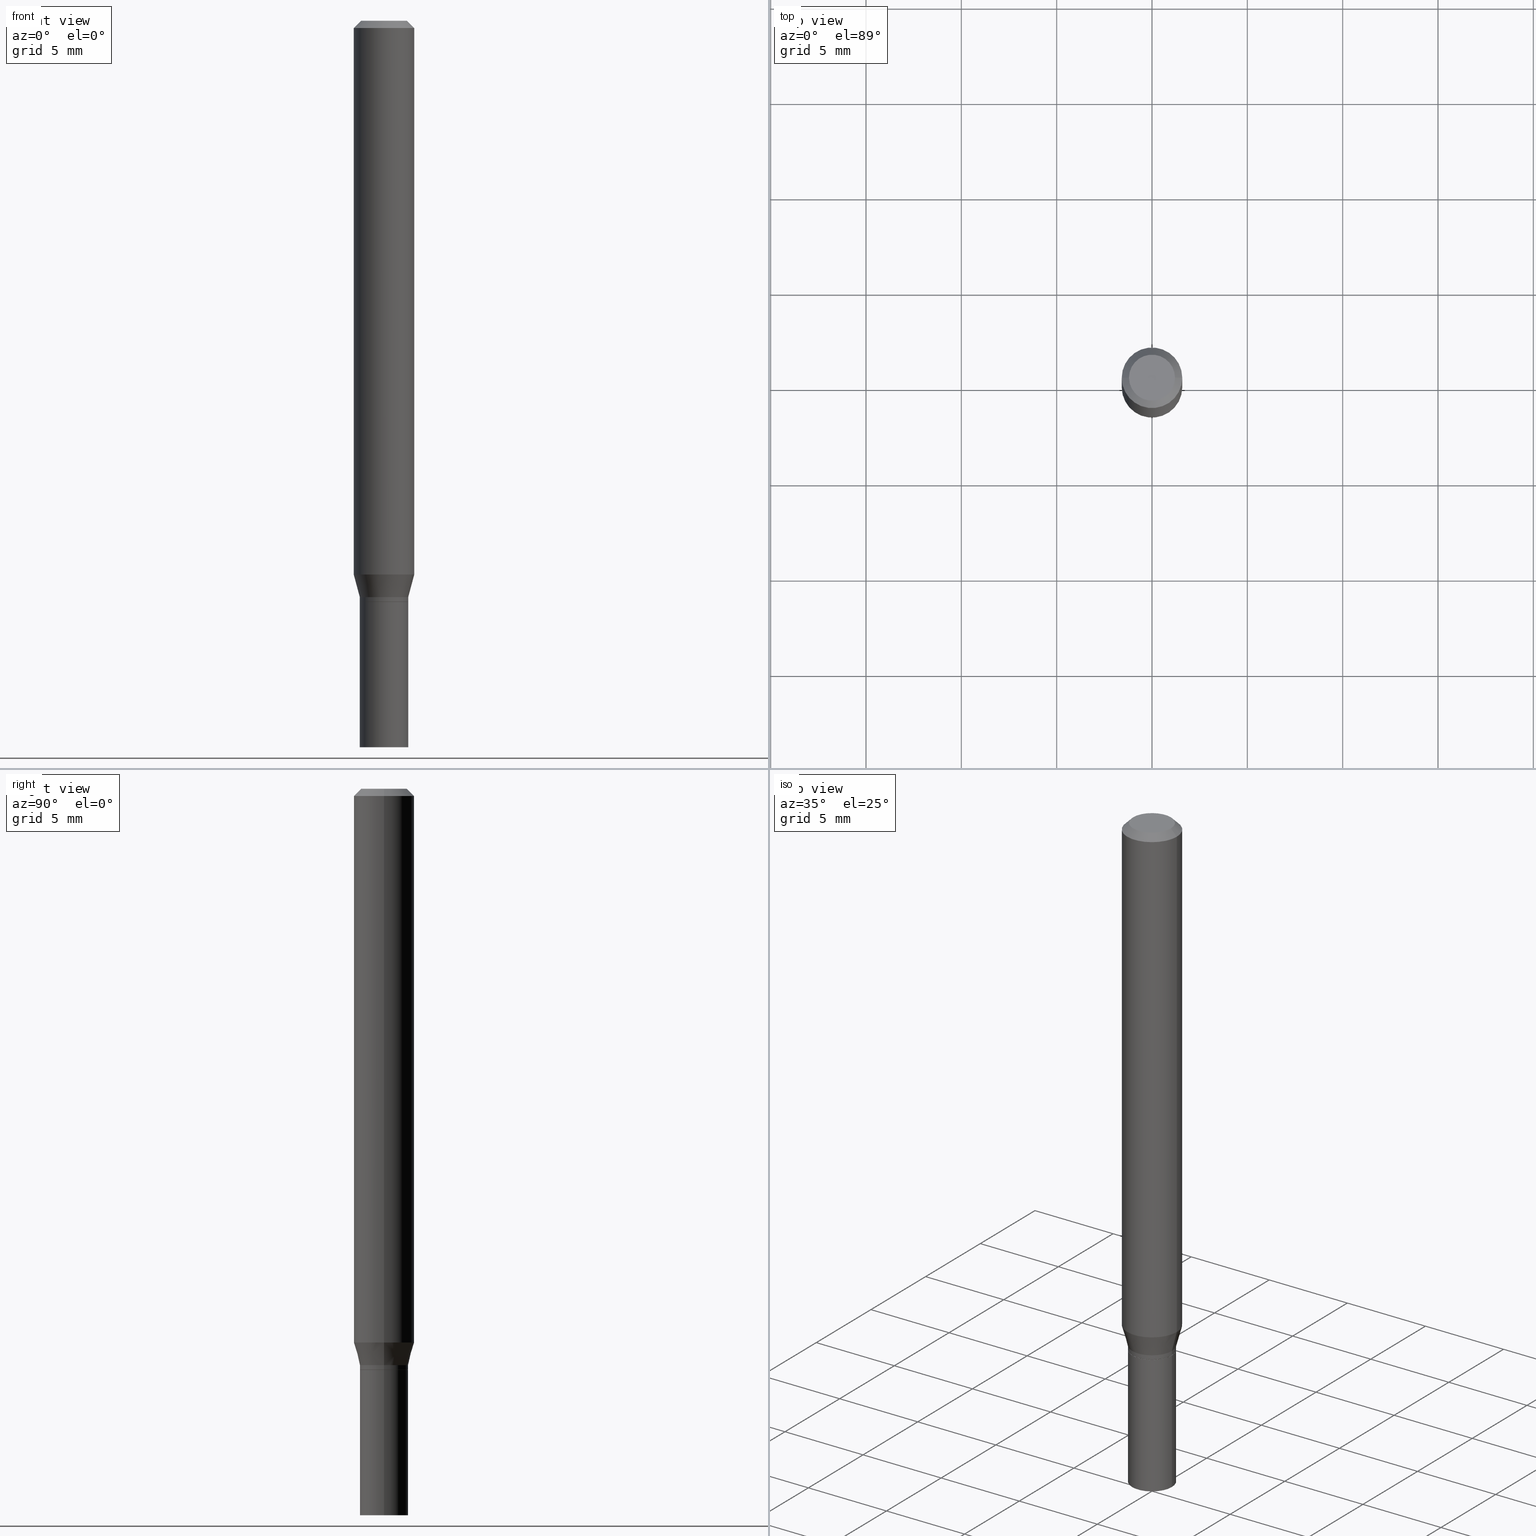
[diagram: canonical four-view strip — front | top / right | iso, engineering-drawing reading convention]
A machine part, canonical four-view strip (front | top / right | iso — engineering-drawing reading convention). The complete STEP part file that produces these views, byte-faithful:
ISO-10303-21;
HEADER;
FILE_DESCRIPTION (( 'STEP AP203' ),
    '1' );
FILE_NAME ('01222.STEP',
    '2024-03-20T00:12:47',
    ( '' ),
    ( '' ),
    'SwSTEP 2.0',
    'SolidWorks 2023',
    '' );
FILE_SCHEMA (( 'CONFIG_CONTROL_DESIGN' ));
ENDSEC;

DATA;
#1 = CONICAL_SURFACE ( 'NONE', #299, 0.06250000000000000000, 0.7853981633974456145 ) ;
#2 = LINE ( 'NONE', #396, #58 ) ;
#3 = PERSON_AND_ORGANIZATION ( #435, #434 ) ;
#4 = DIRECTION ( 'NONE',  ( -2.445468806185136597E-29, 3.491481338843145583E-15, 1.000000000000000000 ) ) ;
#5 = CARTESIAN_POINT ( 'NONE',  ( 2.934562567422164701E-29, -4.189777606611775804E-15, -1.200000000000000178 ) ) ;
#6 = DIRECTION ( 'NONE',  ( 0.2588190451025219607, 1.565188264969617432E-15, 0.9659258262890679791 ) ) ;
#7 = EDGE_CURVE ( 'NONE', #378, #350, #383, .T. ) ;
#8 = LINE ( 'NONE', #294, #319 ) ;
#9 = LOCAL_TIME ( 20, 12, 47.00000000000000000, #124 ) ;
#10 = CIRCLE ( 'NONE', #90, 0.05000000000000006523 ) ;
#11 = ADVANCED_FACE ( 'NONE', ( #399 ), #34, .T. ) ;
#12 = DIRECTION ( 'NONE',  ( 1.000000000000000000, -6.982962677686266711E-15, 4.876176775795935793E-29 ) ) ;
#13 = ADVANCED_FACE ( 'NONE', ( #143 ), #29, .T. ) ;
#14 = FACE_OUTER_BOUND ( 'NONE', #151, .T. ) ;
#15 = CARTESIAN_POINT ( 'NONE',  ( -0.05000000000000006523, -3.673742593419279671E-15, -1.190000000000000169 ) ) ;
#16 = EDGE_CURVE ( 'NONE', #311, #278, #341, .T. ) ;
#17 = DATE_TIME_ROLE ( 'classification_date' ) ;
#18 = DIRECTION ( 'NONE',  ( 1.000000000000000000, -6.982962677686265133E-15, 0.000000000000000000 ) ) ;
#19 = ORIENTED_EDGE ( 'NONE', *, *, #112, .F. ) ;
#20 = CONICAL_SURFACE ( 'NONE', #123, 0.04950000000000000233, 0.7853981633974739252 ) ;
#21 = LOCAL_TIME ( 20, 12, 47.00000000000000000, #203 ) ;
#22 = CARTESIAN_POINT ( 'NONE',  ( 0.04950000000000000233, -4.535434259157245343E-15, -1.200000000000000178 ) ) ;
#23 = EDGE_LOOP ( 'NONE', ( #461, #239 ) ) ;
#24 = VERTEX_POINT ( 'NONE', #37 ) ;
#25 = EDGE_CURVE ( 'NONE', #170, #273, #179, .T. ) ;
#26 = ORIENTED_EDGE ( 'NONE', *, *, #188, .T. ) ;
#27 = DIRECTION ( 'NONE',  ( -2.445468806185136597E-29, 3.491481338843145583E-15, 1.000000000000000000 ) ) ;
#28 = AXIS2_PLACEMENT_3D ( 'NONE', #183, #326, #12 ) ;
#29 = CYLINDRICAL_SURFACE ( 'NONE', #452, 0.05000000000000000278 ) ;
#30 = PLANE ( 'NONE',  #144 ) ;
#31 = FACE_OUTER_BOUND ( 'NONE', #241, .T. ) ;
#32 = CONICAL_SURFACE ( 'NONE', #307, 0.04950000000000000233, 0.7853981633974739252 ) ;
#33 = DIRECTION ( 'NONE',  ( -2.445468806185136597E-29, 3.491481338843145583E-15, 1.000000000000000000 ) ) ;
#34 = CONICAL_SURFACE ( 'NONE', #320, 0.05000000000000006523, 0.2617993877991506846 ) ;
#35 = DIRECTION ( 'NONE',  ( 1.000000000000000000, 0.000000000000000000, 0.000000000000000000 ) ) ;
#36 = CARTESIAN_POINT ( 'NONE',  ( 2.934562567422164701E-29, -4.189777606611775804E-15, -1.200000000000000178 ) ) ;
#37 = CARTESIAN_POINT ( 'NONE',  ( -0.04749999999999999362, 3.578768372314211985E-16, 8.618106228653636715E-17 ) ) ;
#38 = ADVANCED_FACE ( 'NONE', ( #217 ), #20, .T. ) ;
#39 = UNCERTAINTY_MEASURE_WITH_UNIT (LENGTH_MEASURE( 1.000000000000000082E-05 ), #228, 'distance_accuracy_value', 'NONE');
#40 = DIRECTION ( 'NONE',  ( -2.445468806185136877E-29, 3.491481338843145188E-15, 1.000000000000000000 ) ) ;
#41 = DIRECTION ( 'NONE',  ( -2.445468806185136597E-29, 3.491481338843145583E-15, 1.000000000000000000 ) ) ;
#42 = VECTOR ( 'NONE', #414, 39.37007874015748143 ) ;
#43 = DIRECTION ( 'NONE',  ( -2.445468806185136597E-29, 3.491481338843145583E-15, 1.000000000000000000 ) ) ;
#44 = CARTESIAN_POINT ( 'NONE',  ( -0.05000000000000000278, -4.358228439558196976E-15, -1.200000000000000178 ) ) ;
#45 = APPROVAL_ROLE ( '' ) ;
#46 = DIRECTION ( 'NONE',  ( 2.445468806185136597E-29, -3.491481338843145583E-15, -1.000000000000000000 ) ) ;
#47 = CARTESIAN_POINT ( 'NONE',  ( -0.05000000000000000278, -4.358228439558196976E-15, -1.500000000000000222 ) ) ;
#48 = AXIS2_PLACEMENT_3D ( 'NONE', #400, #4, #113 ) ;
#49 = CARTESIAN_POINT ( 'NONE',  ( 2.934562567422164701E-29, -4.189777606611775804E-15, -1.200000000000000178 ) ) ;
#50 = CALENDAR_DATE ( 2024, 19, 3 ) ;
#51 = ADVANCED_FACE ( 'NONE', ( #31 ), #462, .T. ) ;
#52 = ORIENTED_EDGE ( 'NONE', *, *, #374, .T. ) ;
#53 = DATE_AND_TIME ( #270, #9 ) ;
#54 = EDGE_LOOP ( 'NONE', ( #161, #67, #169, #237 ) ) ;
#55 = CLOSED_SHELL ( 'NONE', ( #51, #268, #215, #196, #11, #322, #346, #115, #131, #57, #38, #282 ) ) ;
#56 = CC_DESIGN_APPROVAL ( #397, ( #351 ) ) ;
#57 = ADVANCED_FACE ( 'NONE', ( #114 ), #30, .F. ) ;
#58 = VECTOR ( 'NONE', #404, 39.37007874015748143 ) ;
#59 = ORIENTED_EDGE ( 'NONE', *, *, #453, .F. ) ;
#60 = APPROVAL_ROLE ( '' ) ;
#61 = ORIENTED_EDGE ( 'NONE', *, *, #293, .T. ) ;
#62 = CC_DESIGN_DATE_AND_TIME_ASSIGNMENT ( #53, #465, ( #272 ) ) ;
#63 = EDGE_LOOP ( 'NONE', ( #323, #430, #450, #348 ) ) ;
#64 = ORIENTED_EDGE ( 'NONE', *, *, #185, .T. ) ;
#65 = DIRECTION ( 'NONE',  ( 1.000000000000000000, -6.982962677686266711E-15, 4.876176775795935232E-29 ) ) ;
#66 = PERSON_AND_ORGANIZATION ( #435, #434 ) ;
#67 = ORIENTED_EDGE ( 'NONE', *, *, #275, .F. ) ;
#68 = LOCAL_TIME ( 20, 12, 47.00000000000000000, #230 ) ;
#69 = CIRCLE ( 'NONE', #398, 0.05000000000000000278 ) ;
#70 = DIRECTION ( 'NONE',  ( 1.000000000000000000, -6.982962677686266711E-15, 0.000000000000000000 ) ) ;
#71 = EDGE_CURVE ( 'NONE', #311, #105, #2, .T. ) ;
#72 = CARTESIAN_POINT ( 'NONE',  ( 0.05000000000000000278, -4.538925740496089139E-15, -1.200000000000000178 ) ) ;
#73 = CARTESIAN_POINT ( 'NONE',  ( 0.05000000000000006523, -3.491481338843137793E-16, 2.438088387897970699E-30 ) ) ;
#74 = DIRECTION ( 'NONE',  ( -2.445468806185136597E-29, 3.491481338843145583E-15, 1.000000000000000000 ) ) ;
#75 = DIRECTION ( 'NONE',  ( 1.000000000000000000, -6.982962677686266711E-15, 4.876176775795935793E-29 ) ) ;
#76 = AXIS2_PLACEMENT_3D ( 'NONE', #449, #337, #271 ) ;
#77 = EDGE_CURVE ( 'NONE', #390, #273, #10, .T. ) ;
#78 = CARTESIAN_POINT ( 'NONE',  ( 0.000000000000000000, 0.000000000000000000, 0.000000000000000000 ) ) ;
#79 = DIRECTION ( 'NONE',  ( 1.000000000000000000, -6.982962677686274599E-15, 0.000000000000000000 ) ) ;
#80 = DIRECTION ( 'NONE',  ( 0.7071067811865656694, -2.468850131082446387E-15, 0.7071067811865294761 ) ) ;
#81 = CARTESIAN_POINT ( 'NONE',  ( 0.000000000000000000, 0.000000000000000000, 0.000000000000000000 ) ) ;
#82 = PRODUCT ( '01222', '01222', '', ( #118 ) ) ;
#83 = LOCAL_TIME ( 20, 12, 47.00000000000000000, #189 ) ;
#84 = VECTOR ( 'NONE', #353, 39.37007874015748854 ) ;
#85 = DIRECTION ( 'NONE',  ( 1.000000000000000000, -6.982962677686275388E-15, 0.000000000000000000 ) ) ;
#86 = CARTESIAN_POINT ( 'NONE',  ( 0.06250000000000000000, -4.811533449433679005E-16, -0.01499999999999999944 ) ) ;
#87 = DIRECTION ( 'NONE',  ( -1.000000000000000000, 6.982962677686266711E-15, 0.000000000000000000 ) ) ;
#88 = EDGE_CURVE ( 'NONE', #418, #24, #368, .T. ) ;
#89 = APPROVAL_PERSON_ORGANIZATION ( #441, #438, #45 ) ;
#90 = AXIS2_PLACEMENT_3D ( 'NONE', #214, #321, #147 ) ;
#91 = EDGE_CURVE ( 'NONE', #242, #313, #69, .T. ) ;
#92 = EDGE_LOOP ( 'NONE', ( #100, #61, #247, #167 ) ) ;
#93 = PERSON_AND_ORGANIZATION_ROLE ( 'classification_officer' ) ;
#94 = VERTEX_POINT ( 'NONE', #250 ) ;
#95 = ORIENTED_EDGE ( 'NONE', *, *, #410, .F. ) ;
#96 = ADVANCED_FACE ( 'NONE', ( #401 ), #180, .T. ) ;
#97 = PLANE ( 'NONE',  #292 ) ;
#98 = ORIENTED_EDGE ( 'NONE', *, *, #379, .F. ) ;
#99 = AXIS2_PLACEMENT_3D ( 'NONE', #234, #194, #18 ) ;
#100 = ORIENTED_EDGE ( 'NONE', *, *, #259, .T. ) ;
#101 = DIRECTION ( 'NONE',  ( -2.445468806185136597E-29, 3.491481338843145583E-15, 1.000000000000000000 ) ) ;
#102 = ORIENTED_EDGE ( 'NONE', *, *, #354, .T. ) ;
#103 = DIRECTION ( 'NONE',  ( 1.000000000000000000, -6.982962677686274599E-15, 0.000000000000000000 ) ) ;
#104 = ORIENTED_EDGE ( 'NONE', *, *, #106, .T. ) ;
#105 = VERTEX_POINT ( 'NONE', #432 ) ;
#106 = EDGE_CURVE ( 'NONE', #273, #140, #222, .T. ) ;
#107 = ORIENTED_EDGE ( 'NONE', *, *, #209, .F. ) ;
#108 = VECTOR ( 'NONE', #126, 39.37007874015748143 ) ;
#109 = LINE ( 'NONE', #280, #429 ) ;
#110 = DIRECTION ( 'NONE',  ( 1.000000000000000000, -6.982962677686264344E-15, 0.000000000000000000 ) ) ;
#111 = DIRECTION ( 'NONE',  ( 1.000000000000000000, -6.982962677686274599E-15, 0.000000000000000000 ) ) ;
#112 = EDGE_CURVE ( 'NONE', #24, #378, #117, .T. ) ;
#113 = DIRECTION ( 'NONE',  ( 1.000000000000000000, -6.982962677686275388E-15, 0.000000000000000000 ) ) ;
#114 = FACE_OUTER_BOUND ( 'NONE', #136, .T. ) ;
#115 = ADVANCED_FACE ( 'NONE', ( #425 ), #436, .T. ) ;
#116 = LINE ( 'NONE', #408, #261 ) ;
#117 = LINE ( 'NONE', #208, #84 ) ;
#118 = MECHANICAL_CONTEXT ( 'NONE', #407, 'mechanical' ) ;
#119 =( NAMED_UNIT ( * ) PLANE_ANGLE_UNIT ( ) SI_UNIT ( $, .RADIAN. ) );
#120 = CYLINDRICAL_SURFACE ( 'NONE', #28, 0.06250000000000000000 ) ;
#121 = AXIS2_PLACEMENT_3D ( 'NONE', #181, #444, #224 ) ;
#122 = SECURITY_CLASSIFICATION ( '', '', #375 ) ;
#123 = AXIS2_PLACEMENT_3D ( 'NONE', #244, #314, #357 ) ;
#124 = COORDINATED_UNIVERSAL_TIME_OFFSET ( 5, 0, .BEHIND. ) ;
#125 = DIRECTION ( 'NONE',  ( -1.000000000000000000, 6.982962677686265922E-15, -4.876176775795935793E-29 ) ) ;
#126 = DIRECTION ( 'NONE',  ( -2.445468806185136877E-29, 3.491481338843145188E-15, 1.000000000000000000 ) ) ;
#127 = PERSON_AND_ORGANIZATION_ROLE ( 'design_owner' ) ;
#128 = CC_DESIGN_APPROVAL ( #336, ( #122 ) ) ;
#129 = ORIENTED_EDGE ( 'NONE', *, *, #225, .F. ) ;
#130 = PERSON_AND_ORGANIZATION ( #435, #434 ) ;
#131 = ADVANCED_FACE ( 'NONE', ( #256 ), #447, .F. ) ;
#132 = EDGE_LOOP ( 'NONE', ( #98, #426, #133, #304 ) ) ;
#133 = ORIENTED_EDGE ( 'NONE', *, *, #25, .T. ) ;
#134 = CC_DESIGN_DATE_AND_TIME_ASSIGNMENT ( #193, #17, ( #122 ) ) ;
#135 = DIRECTION ( 'NONE',  ( 1.000000000000000000, -6.982962677686264344E-15, 0.000000000000000000 ) ) ;
#136 = EDGE_LOOP ( 'NONE', ( #149, #454 ) ) ;
#137 = ORIENTED_EDGE ( 'NONE', *, *, #77, .T. ) ;
#138 = ORIENTED_EDGE ( 'NONE', *, *, #204, .T. ) ;
#139 = CARTESIAN_POINT ( 'NONE',  ( 3.668203209277705088E-31, -5.237222008264718399E-17, -0.01499999999999999944 ) ) ;
#140 = VERTEX_POINT ( 'NONE', #156 ) ;
#141 = PRODUCT_RELATED_PRODUCT_CATEGORY ( 'detail', '', ( #82 ) ) ;
#142 = DIRECTION ( 'NONE',  ( 1.000000000000000000, -6.982962677686265922E-15, 4.876176775795935793E-29 ) ) ;
#143 = FACE_OUTER_BOUND ( 'NONE', #197, .T. ) ;
#144 = AXIS2_PLACEMENT_3D ( 'NONE', #355, #433, #318 ) ;
#145 = LOCAL_TIME ( 20, 12, 47.00000000000000000, #263 ) ;
#146 = AXIS2_PLACEMENT_3D ( 'NONE', #257, #262, #125 ) ;
#147 = DIRECTION ( 'NONE',  ( 1.000000000000000000, -6.982962677686265133E-15, 0.000000000000000000 ) ) ;
#148 = DESIGN_CONTEXT ( 'detailed design', #448, 'design' ) ;
#149 = ORIENTED_EDGE ( 'NONE', *, *, #188, .F. ) ;
#150 = DIRECTION ( 'NONE',  ( 1.000000000000000000, -6.982962677686274599E-15, 0.000000000000000000 ) ) ;
#151 = EDGE_LOOP ( 'NONE', ( #26, #393, #107, #335 ) ) ;
#152 = DIRECTION ( 'NONE',  ( -2.445468806185136597E-29, 3.491481338843145583E-15, 1.000000000000000000 ) ) ;
#153 = DIRECTION ( 'NONE',  ( -2.445468806185136597E-29, 3.491481338843145583E-15, 1.000000000000000000 ) ) ;
#154 = AXIS2_PLACEMENT_3D ( 'NONE', #139, #287, #70 ) ;
#155 = CARTESIAN_POINT ( 'NONE',  ( 0.05000000000000000278, -5.586370142149032301E-15, -1.500000000000000222 ) ) ;
#156 = CARTESIAN_POINT ( 'NONE',  ( 0.06250000000000000000, -4.428418138700722248E-15, -1.143349364905389631 ) ) ;
#157 = CARTESIAN_POINT ( 'NONE',  ( 2.934562567422164701E-29, -4.189777606611775804E-15, -1.200000000000000178 ) ) ;
#158 = LINE ( 'NONE', #300, #42 ) ;
#159 = AXIS2_PLACEMENT_3D ( 'NONE', #36, #365, #150 ) ;
#160 = PERSON_AND_ORGANIZATION_ROLE ( 'design_supplier' ) ;
#161 = ORIENTED_EDGE ( 'NONE', *, *, #442, .F. ) ;
#162 = APPROVAL_ROLE ( '' ) ;
#163 = APPROVAL_PERSON_ORGANIZATION ( #3, #397, #60 ) ;
#164 = EDGE_LOOP ( 'NONE', ( #59, #137, #104, #129 ) ) ;
#165 = CYLINDRICAL_SURFACE ( 'NONE', #221, 0.05000000000000006523 ) ;
#166 = ORIENTED_EDGE ( 'NONE', *, *, #379, .T. ) ;
#167 = ORIENTED_EDGE ( 'NONE', *, *, #370, .F. ) ;
#168 = CALENDAR_DATE ( 2024, 19, 3 ) ;
#169 = ORIENTED_EDGE ( 'NONE', *, *, #112, .T. ) ;
#170 = VERTEX_POINT ( 'NONE', #409 ) ;
#171 =( GEOMETRIC_REPRESENTATION_CONTEXT ( 3 ) GLOBAL_UNCERTAINTY_ASSIGNED_CONTEXT ( ( #39 ) ) GLOBAL_UNIT_ASSIGNED_CONTEXT ( ( #228, #119, #291 ) ) REPRESENTATION_CONTEXT ( 'NONE', 'WORKASPACE' ) );
#172 = DIRECTION ( 'NONE',  ( -2.445468806185136597E-29, 3.491481338843145583E-15, 1.000000000000000000 ) ) ;
#173 = EDGE_CURVE ( 'NONE', #350, #378, #466, .T. ) ;
#174 = ORIENTED_EDGE ( 'NONE', *, *, #293, .F. ) ;
#175 = DIRECTION ( 'NONE',  ( 1.000000000000000000, -6.982962677686267499E-15, 4.884662768193073002E-29 ) ) ;
#176 = DIRECTION ( 'NONE',  ( -2.445468806185136597E-29, 3.491481338843145583E-15, 1.000000000000000000 ) ) ;
#177 = CARTESIAN_POINT ( 'NONE',  ( 0.000000000000000000, 0.000000000000000000, 0.000000000000000000 ) ) ;
#178 = AXIS2_PLACEMENT_3D ( 'NONE', #260, #43, #85 ) ;
#179 = LINE ( 'NONE', #73, #213 ) ;
#180 = CYLINDRICAL_SURFACE ( 'NONE', #327, 0.05000000000000000278 ) ;
#181 = CARTESIAN_POINT ( 'NONE',  ( 3.668203209277705088E-31, -5.237222008264718399E-17, -0.01499999999999999944 ) ) ;
#182 = LINE ( 'NONE', #376, #108 ) ;
#183 = CARTESIAN_POINT ( 'NONE',  ( 0.000000000000000000, 0.000000000000000000, 0.000000000000000000 ) ) ;
#184 = CIRCLE ( 'NONE', #233, 0.04950000000000000233 ) ;
#185 = EDGE_CURVE ( 'NONE', #278, #170, #8, .T. ) ;
#186 = LINE ( 'NONE', #330, #295 ) ;
#187 = LINE ( 'NONE', #86, #201 ) ;
#188 = EDGE_CURVE ( 'NONE', #278, #311, #184, .T. ) ;
#189 = COORDINATED_UNIVERSAL_TIME_OFFSET ( 5, 0, .BEHIND. ) ;
#190 = DIRECTION ( 'NONE',  ( -2.445468806185136597E-29, 3.491481338843145583E-15, 1.000000000000000000 ) ) ;
#191 = CIRCLE ( 'NONE', #286, 0.06250000000000000000 ) ;
#192 = ORIENTED_EDGE ( 'NONE', *, *, #16, .T. ) ;
#193 = DATE_AND_TIME ( #236, #68 ) ;
#194 = DIRECTION ( 'NONE',  ( -2.445468806185136597E-29, 3.491481338843145583E-15, 1.000000000000000000 ) ) ;
#195 = EDGE_LOOP ( 'NONE', ( #240, #422, #52, #381 ) ) ;
#196 = ADVANCED_FACE ( 'NONE', ( #413 ), #120, .T. ) ;
#197 = EDGE_LOOP ( 'NONE', ( #174, #388, #274, #235 ) ) ;
#198 = AXIS2_PLACEMENT_3D ( 'NONE', #324, #152, #298 ) ;
#199 = MANIFOLD_SOLID_BREP ( 'Body-Move/Copy2[1]', #343 ) ;
#200 = DIRECTION ( 'NONE',  ( 0.7071067811865454633, -7.319954787623246579E-15, -0.7071067811865493491 ) ) ;
#201 = VECTOR ( 'NONE', #200, 39.37007874015748854 ) ;
#202 = ORIENTED_EDGE ( 'NONE', *, *, #71, .F. ) ;
#203 = COORDINATED_UNIVERSAL_TIME_OFFSET ( 5, 0, .BEHIND. ) ;
#204 = EDGE_CURVE ( 'NONE', #94, #378, #186, .T. ) ;
#205 = ORIENTED_EDGE ( 'NONE', *, *, #374, .F. ) ;
#206 = APPROVAL_STATUS ( 'not_yet_approved' ) ;
#207 = VERTEX_POINT ( 'NONE', #155 ) ;
#208 = CARTESIAN_POINT ( 'NONE',  ( -0.06250000000000000000, 3.840629472727444916E-16, -0.01499999999999999944 ) ) ;
#209 = EDGE_CURVE ( 'NONE', #170, #105, #246, .T. ) ;
#210 = AXIS2_PLACEMENT_3D ( 'NONE', #463, #395, #142 ) ;
#211 = MANIFOLD_SOLID_BREP ( 'Body-Move/Copy2[2]', #55 ) ;
#212 = ORIENTED_EDGE ( 'NONE', *, *, #442, .T. ) ;
#213 = VECTOR ( 'NONE', #281, 39.37007874015748143 ) ;
#214 = CARTESIAN_POINT ( 'NONE',  ( 2.910107879360313156E-29, -4.154862793223344154E-15, -1.190000000000000169 ) ) ;
#215 = ADVANCED_FACE ( 'NONE', ( #297 ), #1, .T. ) ;
#216 = FACE_OUTER_BOUND ( 'NONE', #164, .T. ) ;
#217 = FACE_OUTER_BOUND ( 'NONE', #386, .T. ) ;
#218 = DIRECTION ( 'NONE',  ( 1.000000000000000000, -6.982962677686270655E-15, 0.000000000000000000 ) ) ;
#219 = DIRECTION ( 'NONE',  ( -2.445468806185136597E-29, 3.491481338843145583E-15, 1.000000000000000000 ) ) ;
#220 = CARTESIAN_POINT ( 'NONE',  ( 0.000000000000000000, 0.000000000000000000, 0.000000000000000000 ) ) ;
#221 = AXIS2_PLACEMENT_3D ( 'NONE', #308, #249, #223 ) ;
#222 = LINE ( 'NONE', #362, #227 ) ;
#223 = DIRECTION ( 'NONE',  ( 1.000000000000000000, -6.982962677686266711E-15, 4.876176775795935232E-29 ) ) ;
#224 = DIRECTION ( 'NONE',  ( -1.000000000000000000, 6.982962677686266711E-15, 0.000000000000000000 ) ) ;
#225 = EDGE_CURVE ( 'NONE', #94, #140, #191, .T. ) ;
#226 = AXIS2_PLACEMENT_3D ( 'NONE', #356, #176, #437 ) ;
#227 = VECTOR ( 'NONE', #6, 39.37007874015748143 ) ;
#228 =( CONVERSION_BASED_UNIT ( 'INCH', #439 ) LENGTH_UNIT ( ) NAMED_UNIT ( #331 ) );
#229 = CARTESIAN_POINT ( 'NONE',  ( 3.668203209277704895E-29, -5.237222008264718177E-15, -1.500000000000000222 ) ) ;
#230 = COORDINATED_UNIVERSAL_TIME_OFFSET ( 5, 0, .BEHIND. ) ;
#231 = CARTESIAN_POINT ( 'NONE',  ( -0.06250000000000000000, -1.578088385863926213E-15, -0.01499999999999999944 ) ) ;
#232 = AXIS2_PLACEMENT_3D ( 'NONE', #220, #406, #35 ) ;
#233 = AXIS2_PLACEMENT_3D ( 'NONE', #157, #41, #364 ) ;
#234 = CARTESIAN_POINT ( 'NONE',  ( 2.910107879360313156E-29, -4.154862793223344154E-15, -1.190000000000000169 ) ) ;
#235 = ORIENTED_EDGE ( 'NONE', *, *, #91, .F. ) ;
#236 = CALENDAR_DATE ( 2024, 19, 3 ) ;
#237 = ORIENTED_EDGE ( 'NONE', *, *, #7, .T. ) ;
#238 = APPROVAL_PERSON_ORGANIZATION ( #266, #336, #162 ) ;
#239 = ORIENTED_EDGE ( 'NONE', *, *, #88, .T. ) ;
#240 = ORIENTED_EDGE ( 'NONE', *, *, #204, .F. ) ;
#241 = EDGE_LOOP ( 'NONE', ( #279, #166, #95, #382 ) ) ;
#242 = VERTEX_POINT ( 'NONE', #44 ) ;
#243 = DATE_AND_TIME ( #168, #21 ) ;
#244 = CARTESIAN_POINT ( 'NONE',  ( 2.934562567422164701E-29, -4.189777606611775804E-15, -1.200000000000000178 ) ) ;
#245 = CONICAL_SURFACE ( 'NONE', #226, 0.05000000000000006523, 0.2617993877991506846 ) ;
#246 = CIRCLE ( 'NONE', #178, 0.05000000000000006523 ) ;
#247 = ORIENTED_EDGE ( 'NONE', *, *, #354, .F. ) ;
#248 = CC_DESIGN_PERSON_AND_ORGANIZATION_ASSIGNMENT ( #303, #93, ( #122 ) ) ;
#249 = DIRECTION ( 'NONE',  ( -2.445468806185136597E-29, 3.491481338843145583E-15, 1.000000000000000000 ) ) ;
#250 = CARTESIAN_POINT ( 'NONE',  ( -0.06250000000000000000, -3.547893761495267568E-15, -1.143349364905389631 ) ) ;
#251 = FACE_OUTER_BOUND ( 'NONE', #195, .T. ) ;
#252 = CARTESIAN_POINT ( 'NONE',  ( 0.000000000000000000, 0.000000000000000000, 0.000000000000000000 ) ) ;
#253 =( LENGTH_UNIT ( ) NAMED_UNIT ( * ) SI_UNIT ( $, .METRE. ) );
#254 = CIRCLE ( 'NONE', #48, 0.05000000000000006523 ) ;
#255 = DIRECTION ( 'NONE',  ( -2.445468806185136597E-29, 3.491481338843145583E-15, 1.000000000000000000 ) ) ;
#256 = FACE_OUTER_BOUND ( 'NONE', #23, .T. ) ;
#257 = CARTESIAN_POINT ( 'NONE',  ( 3.316907271900976096E-16, 0.04749999999999999362, -1.227548324517800049E-16 ) ) ;
#258 = APPLICATION_PROTOCOL_DEFINITION ( 'international standard', 'config_control_design', 1994, #407 ) ;
#259 = EDGE_CURVE ( 'NONE', #207, #391, #424, .T. ) ;
#260 = CARTESIAN_POINT ( 'NONE',  ( 2.933339833019071899E-29, -4.188031865942353511E-15, -1.199500000000000233 ) ) ;
#261 = VECTOR ( 'NONE', #40, 39.37007874015748143 ) ;
#262 = DIRECTION ( 'NONE',  ( 2.438088387897960049E-29, -3.491481338843145188E-15, -1.000000000000000000 ) ) ;
#263 = COORDINATED_UNIVERSAL_TIME_OFFSET ( 5, 0, .BEHIND. ) ;
#264 = CARTESIAN_POINT ( 'NONE',  ( -0.05000000000000006523, -3.799591425343292957E-15, -1.190000000000000169 ) ) ;
#265 = DIRECTION ( 'NONE',  ( -2.445468806185136597E-29, 3.491481338843145583E-15, 1.000000000000000000 ) ) ;
#266 = PERSON_AND_ORGANIZATION ( #435, #434 ) ;
#267 = AXIS2_PLACEMENT_3D ( 'NONE', #412, #27, #218 ) ;
#268 = ADVANCED_FACE ( 'NONE', ( #14 ), #32, .T. ) ;
#269 = EDGE_LOOP ( 'NONE', ( #310, #212, #456, #19 ) ) ;
#270 = CALENDAR_DATE ( 2024, 19, 3 ) ;
#271 = DIRECTION ( 'NONE',  ( 1.000000000000000000, -6.982962677686267499E-15, 4.884662768193073002E-29 ) ) ;
#272 = PRODUCT_DEFINITION ( 'UNKNOWN', '', #351, #148 ) ;
#273 = VERTEX_POINT ( 'NONE', #334 ) ;
#274 = ORIENTED_EDGE ( 'NONE', *, *, #370, .T. ) ;
#275 = EDGE_CURVE ( 'NONE', #24, #418, #277, .T. ) ;
#276 = EDGE_LOOP ( 'NONE', ( #102, #339 ) ) ;
#277 = CIRCLE ( 'NONE', #76, 0.04749999999999999362 ) ;
#278 = VERTEX_POINT ( 'NONE', #22 ) ;
#279 = ORIENTED_EDGE ( 'NONE', *, *, #209, .T. ) ;
#280 = CARTESIAN_POINT ( 'NONE',  ( -0.05000000000000000278, 3.552713678800501127E-16, -2.459467545127453311E-30 ) ) ;
#281 = DIRECTION ( 'NONE',  ( -2.445468806185136877E-29, 3.491481338843145188E-15, 1.000000000000000000 ) ) ;
#282 = ADVANCED_FACE ( 'NONE', ( #423 ), #165, .T. ) ;
#283 = CARTESIAN_POINT ( 'NONE',  ( -0.04950000000000000233, -3.835409725236414304E-15, -1.200000000000000178 ) ) ;
#284 = DIRECTION ( 'NONE',  ( 1.000000000000000000, -6.982962677686267499E-15, 4.876176775795936353E-29 ) ) ;
#285 = AXIS2_PLACEMENT_3D ( 'NONE', #177, #219, #65 ) ;
#286 = AXIS2_PLACEMENT_3D ( 'NONE', #328, #265, #371 ) ;
#287 = DIRECTION ( 'NONE',  ( -2.445468806185136597E-29, 3.491481338843145583E-15, 1.000000000000000000 ) ) ;
#288 = CARTESIAN_POINT ( 'NONE',  ( -2.107530995056288845E-45, 3.008995707351289501E-31, 8.618106228653878303E-17 ) ) ;
#289 = EDGE_CURVE ( 'NONE', #140, #94, #458, .T. ) ;
#290 = DIRECTION ( 'NONE',  ( -2.445468806185136597E-29, 3.491481338843145583E-15, 1.000000000000000000 ) ) ;
#291 =( NAMED_UNIT ( * ) SI_UNIT ( $, .STERADIAN. ) SOLID_ANGLE_UNIT ( ) );
#292 = AXIS2_PLACEMENT_3D ( 'NONE', #385, #296, #363 ) ;
#293 = EDGE_CURVE ( 'NONE', #391, #242, #109, .T. ) ;
#294 = CARTESIAN_POINT ( 'NONE',  ( 0.04950000000000000233, -4.535434259157245343E-15, -1.200000000000000178 ) ) ;
#295 = VECTOR ( 'NONE', #367, 39.37007874015748143 ) ;
#296 = DIRECTION ( 'NONE',  ( 2.438088387897960049E-29, -3.491481338843145188E-15, -1.000000000000000000 ) ) ;
#297 = FACE_OUTER_BOUND ( 'NONE', #269, .T. ) ;
#298 = DIRECTION ( 'NONE',  ( 1.000000000000000000, -6.982962677686266711E-15, 0.000000000000000000 ) ) ;
#299 = AXIS2_PLACEMENT_3D ( 'NONE', #411, #46, #87 ) ;
#300 = CARTESIAN_POINT ( 'NONE',  ( -0.05000000000000006523, 3.552713678800505564E-16, -2.459467545127455764E-30 ) ) ;
#301 = CALENDAR_DATE ( 2024, 19, 3 ) ;
#302 = APPROVAL_DATE_TIME ( #445, #438 ) ;
#303 = PERSON_AND_ORGANIZATION ( #435, #434 ) ;
#304 = ORIENTED_EDGE ( 'NONE', *, *, #77, .F. ) ;
#305 = APPROVAL_DATE_TIME ( #380, #336 ) ;
#306 = EDGE_CURVE ( 'NONE', #391, #207, #440, .T. ) ;
#307 = AXIS2_PLACEMENT_3D ( 'NONE', #49, #455, #135 ) ;
#308 = CARTESIAN_POINT ( 'NONE',  ( 0.000000000000000000, 0.000000000000000000, 0.000000000000000000 ) ) ;
#309 = ADVANCED_FACE ( 'NONE', ( #352 ), #316, .F. ) ;
#310 = ORIENTED_EDGE ( 'NONE', *, *, #88, .F. ) ;
#311 = VERTEX_POINT ( 'NONE', #283 ) ;
#312 = AXIS2_PLACEMENT_3D ( 'NONE', #81, #153, #75 ) ;
#313 = VERTEX_POINT ( 'NONE', #72 ) ;
#314 = DIRECTION ( 'NONE',  ( -2.445468806185136597E-29, 3.491481338843145583E-15, 1.000000000000000000 ) ) ;
#315 = ORIENTED_EDGE ( 'NONE', *, *, #259, .F. ) ;
#316 = PLANE ( 'NONE',  #210 ) ;
#317 = DIRECTION ( 'NONE',  ( -2.445468806185136597E-29, 3.491481338843145583E-15, 1.000000000000000000 ) ) ;
#318 = DIRECTION ( 'NONE',  ( 1.000000000000000000, -6.982962677686265922E-15, 4.876176775795935793E-29 ) ) ;
#319 = VECTOR ( 'NONE', #80, 39.37007874015748143 ) ;
#320 = AXIS2_PLACEMENT_3D ( 'NONE', #428, #172, #464 ) ;
#321 = DIRECTION ( 'NONE',  ( -2.445468806185136597E-29, 3.491481338843145583E-15, 1.000000000000000000 ) ) ;
#322 = ADVANCED_FACE ( 'NONE', ( #216 ), #245, .T. ) ;
#323 = ORIENTED_EDGE ( 'NONE', *, *, #410, .T. ) ;
#324 = CARTESIAN_POINT ( 'NONE',  ( 3.668203209277705088E-31, -5.237222008264718399E-17, -0.01499999999999999944 ) ) ;
#325 = CIRCLE ( 'NONE', #99, 0.05000000000000006523 ) ;
#326 = DIRECTION ( 'NONE',  ( -2.445468806185136597E-29, 3.491481338843145583E-15, 1.000000000000000000 ) ) ;
#327 = AXIS2_PLACEMENT_3D ( 'NONE', #78, #74, #358 ) ;
#328 = CARTESIAN_POINT ( 'NONE',  ( 2.796025206447717260E-29, -3.991982971345330579E-15, -1.143349364905389631 ) ) ;
#329 = AXIS2_PLACEMENT_3D ( 'NONE', #389, #101, #103 ) ;
#330 = CARTESIAN_POINT ( 'NONE',  ( -0.06250000000000000000, 4.440892098500626162E-16, -3.074334431409316114E-30 ) ) ;
#331 = DIMENSIONAL_EXPONENTS ( 1.000000000000000000, 0.000000000000000000, 0.000000000000000000, 0.000000000000000000, 0.000000000000000000, 0.000000000000000000, 0.000000000000000000 ) ;
#332 = APPROVAL_STATUS ( 'not_yet_approved' ) ;
#333 = EDGE_CURVE ( 'NONE', #105, #170, #254, .T. ) ;
#334 = CARTESIAN_POINT ( 'NONE',  ( 0.05000000000000006523, -4.504010927107657490E-15, -1.190000000000000169 ) ) ;
#335 = ORIENTED_EDGE ( 'NONE', *, *, #185, .F. ) ;
#336 = APPROVAL ( #451, 'UNSPECIFIED' ) ;
#337 = DIRECTION ( 'NONE',  ( -2.445468806185136597E-29, 3.491481338843145583E-15, 1.000000000000000000 ) ) ;
#338 = PERSON_AND_ORGANIZATION ( #435, #434 ) ;
#339 = ORIENTED_EDGE ( 'NONE', *, *, #91, .T. ) ;
#340 = ORIENTED_EDGE ( 'NONE', *, *, #173, .F. ) ;
#341 = CIRCLE ( 'NONE', #377, 0.04950000000000000233 ) ;
#342 = CC_DESIGN_APPROVAL ( #438, ( #272 ) ) ;
#343 = CLOSED_SHELL ( 'NONE', ( #96, #309, #13, #457 ) ) ;
#344 = FACE_OUTER_BOUND ( 'NONE', #276, .T. ) ;
#345 = EDGE_LOOP ( 'NONE', ( #460, #138, #340, #205 ) ) ;
#346 = ADVANCED_FACE ( 'NONE', ( #251 ), #403, .T. ) ;
#347 = ORIENTED_EDGE ( 'NONE', *, *, #306, .F. ) ;
#348 = ORIENTED_EDGE ( 'NONE', *, *, #106, .F. ) ;
#349 = ORIENTED_EDGE ( 'NONE', *, *, #333, .F. ) ;
#350 = VERTEX_POINT ( 'NONE', #360 ) ;
#351 = PRODUCT_DEFINITION_FORMATION_WITH_SPECIFIED_SOURCE ( 'ANY', '', #82, .NOT_KNOWN. ) ;
#352 = FACE_OUTER_BOUND ( 'NONE', #420, .T. ) ;
#353 = DIRECTION ( 'NONE',  ( -0.7071067811865454633, 2.468850131082235761E-15, -0.7071067811865493491 ) ) ;
#354 = EDGE_CURVE ( 'NONE', #313, #242, #405, .T. ) ;
#355 = CARTESIAN_POINT ( 'NONE',  ( 2.934562567422164701E-29, -4.189777606611775804E-15, -1.200000000000000178 ) ) ;
#356 = CARTESIAN_POINT ( 'NONE',  ( 2.910107879360313156E-29, -4.154862793223344154E-15, -1.190000000000000169 ) ) ;
#357 = DIRECTION ( 'NONE',  ( 1.000000000000000000, -6.982962677686264344E-15, 0.000000000000000000 ) ) ;
#358 = DIRECTION ( 'NONE',  ( 1.000000000000000000, -6.982962677686267499E-15, 4.876176775795936353E-29 ) ) ;
#359 = VECTOR ( 'NONE', #373, 39.37007874015748143 ) ;
#360 = CARTESIAN_POINT ( 'NONE',  ( 0.06250000000000000000, -4.888073874380388472E-16, -0.01499999999999999944 ) ) ;
#361 = CC_DESIGN_PERSON_AND_ORGANIZATION_ASSIGNMENT ( #338, #160, ( #351 ) ) ;
#362 = CARTESIAN_POINT ( 'NONE',  ( 0.05000000000000006523, -4.504010927107657490E-15, -1.190000000000000169 ) ) ;
#363 = DIRECTION ( 'NONE',  ( -1.000000000000000000, 6.982962677686265922E-15, -4.876176775795935793E-29 ) ) ;
#364 = DIRECTION ( 'NONE',  ( 1.000000000000000000, -6.982962677686264344E-15, 0.000000000000000000 ) ) ;
#365 = DIRECTION ( 'NONE',  ( -2.445468806185136597E-29, 3.491481338843145583E-15, 1.000000000000000000 ) ) ;
#366 = PRODUCT_DEFINITION_SHAPE ( 'NONE', 'NONE',  #272 ) ;
#367 = DIRECTION ( 'NONE',  ( -2.445468806185136877E-29, 3.491481338843145188E-15, 1.000000000000000000 ) ) ;
#368 = CIRCLE ( 'NONE', #384, 0.04749999999999999362 ) ;
#369 = CARTESIAN_POINT ( 'NONE',  ( 0.04749999999999999362, -4.035134999187576651E-16, 8.618106228654135916E-17 ) ) ;
#370 = EDGE_CURVE ( 'NONE', #207, #313, #116, .T. ) ;
#371 = DIRECTION ( 'NONE',  ( 1.000000000000000000, -6.982962677686270655E-15, 0.000000000000000000 ) ) ;
#372 = APPLICATION_PROTOCOL_DEFINITION ( 'international standard', 'config_control_design', 1994, #448 ) ;
#373 = DIRECTION ( 'NONE',  ( -0.2588190451025219607, 5.211531920934553408E-15, 0.9659258262890679791 ) ) ;
#374 = EDGE_CURVE ( 'NONE', #140, #350, #182, .T. ) ;
#375 = SECURITY_CLASSIFICATION_LEVEL ( 'unclassified' ) ;
#376 = CARTESIAN_POINT ( 'NONE',  ( 0.06250000000000000000, -4.364351673553916694E-16, 3.047610484872459871E-30 ) ) ;
#377 = AXIS2_PLACEMENT_3D ( 'NONE', #5, #255, #110 ) ;
#378 = VERTEX_POINT ( 'NONE', #231 ) ;
#379 = EDGE_CURVE ( 'NONE', #105, #390, #158, .T. ) ;
#380 = DATE_AND_TIME ( #50, #145 ) ;
#381 = ORIENTED_EDGE ( 'NONE', *, *, #7, .F. ) ;
#382 = ORIENTED_EDGE ( 'NONE', *, *, #25, .F. ) ;
#383 = CIRCLE ( 'NONE', #154, 0.06250000000000000000 ) ;
#384 = AXIS2_PLACEMENT_3D ( 'NONE', #288, #290, #175 ) ;
#385 = CARTESIAN_POINT ( 'NONE',  ( 3.491481338843426713E-16, 0.04999999999999581168, -1.200000000000000400 ) ) ;
#386 = EDGE_LOOP ( 'NONE', ( #202, #192, #64, #349 ) ) ;
#387 = ADVANCED_BREP_SHAPE_REPRESENTATION ( '01222', ( #199, #211, #232 ), #171 ) ;
#388 = ORIENTED_EDGE ( 'NONE', *, *, #306, .T. ) ;
#389 = CARTESIAN_POINT ( 'NONE',  ( 3.668203209277704895E-29, -5.237222008264718177E-15, -1.500000000000000222 ) ) ;
#390 = VERTEX_POINT ( 'NONE', #15 ) ;
#391 = VERTEX_POINT ( 'NONE', #47 ) ;
#392 = APPROVAL_DATE_TIME ( #243, #397 ) ;
#393 = ORIENTED_EDGE ( 'NONE', *, *, #71, .T. ) ;
#394 = CC_DESIGN_SECURITY_CLASSIFICATION ( #122, ( #351 ) ) ;
#395 = DIRECTION ( 'NONE',  ( -2.438088387897960049E-29, 3.491481338843145188E-15, 1.000000000000000000 ) ) ;
#396 = CARTESIAN_POINT ( 'NONE',  ( -0.04950000000000000233, -3.838058952410526294E-15, -1.200000000000000178 ) ) ;
#397 = APPROVAL ( #206, 'UNSPECIFIED' ) ;
#398 = AXIS2_PLACEMENT_3D ( 'NONE', #431, #317, #111 ) ;
#399 = FACE_OUTER_BOUND ( 'NONE', #63, .T. ) ;
#400 = CARTESIAN_POINT ( 'NONE',  ( 2.933339833019071899E-29, -4.188031865942353511E-15, -1.199500000000000233 ) ) ;
#401 = FACE_OUTER_BOUND ( 'NONE', #92, .T. ) ;
#402 = CC_DESIGN_PERSON_AND_ORGANIZATION_ASSIGNMENT ( #66, #419, ( #351 ) ) ;
#403 = CYLINDRICAL_SURFACE ( 'NONE', #312, 0.06250000000000000000 ) ;
#404 = DIRECTION ( 'NONE',  ( -0.7071067811865656694, 7.493145998870420424E-15, 0.7071067811865294761 ) ) ;
#405 = CIRCLE ( 'NONE', #159, 0.05000000000000000278 ) ;
#406 = DIRECTION ( 'NONE',  ( 0.000000000000000000, 0.000000000000000000, 1.000000000000000000 ) ) ;
#407 = APPLICATION_CONTEXT ( 'configuration controlled 3d designs of mechanical parts and assemblies' ) ;
#408 = CARTESIAN_POINT ( 'NONE',  ( 0.05000000000000000278, -3.491481338843133848E-16, 2.438088387897968247E-30 ) ) ;
#409 = CARTESIAN_POINT ( 'NONE',  ( 0.05000000000000006523, -4.537179999826667636E-15, -1.199500000000000233 ) ) ;
#410 = EDGE_CURVE ( 'NONE', #273, #390, #325, .T. ) ;
#411 = CARTESIAN_POINT ( 'NONE',  ( 3.668203209277705088E-31, -5.237222008264718399E-17, -0.01499999999999999944 ) ) ;
#412 = CARTESIAN_POINT ( 'NONE',  ( 2.796025206447717260E-29, -3.991982971345330579E-15, -1.143349364905389631 ) ) ;
#413 = FACE_OUTER_BOUND ( 'NONE', #345, .T. ) ;
#414 = DIRECTION ( 'NONE',  ( -2.445468806185136877E-29, 3.491481338843145188E-15, 1.000000000000000000 ) ) ;
#415 = CC_DESIGN_PERSON_AND_ORGANIZATION_ASSIGNMENT ( #130, #446, ( #272 ) ) ;
#416 = PERSON_AND_ORGANIZATION ( #435, #434 ) ;
#417 = SHAPE_DEFINITION_REPRESENTATION ( #366, #387 ) ;
#418 = VERTEX_POINT ( 'NONE', #369 ) ;
#419 = PERSON_AND_ORGANIZATION_ROLE ( 'creator' ) ;
#420 = EDGE_LOOP ( 'NONE', ( #315, #347 ) ) ;
#421 = LINE ( 'NONE', #264, #359 ) ;
#422 = ORIENTED_EDGE ( 'NONE', *, *, #225, .T. ) ;
#423 = FACE_OUTER_BOUND ( 'NONE', #132, .T. ) ;
#424 = CIRCLE ( 'NONE', #443, 0.05000000000000000278 ) ;
#425 = FACE_OUTER_BOUND ( 'NONE', #54, .T. ) ;
#426 = ORIENTED_EDGE ( 'NONE', *, *, #333, .T. ) ;
#427 = CC_DESIGN_PERSON_AND_ORGANIZATION_ASSIGNMENT ( #416, #127, ( #82 ) ) ;
#428 = CARTESIAN_POINT ( 'NONE',  ( 2.910107879360313156E-29, -4.154862793223344154E-15, -1.190000000000000169 ) ) ;
#429 = VECTOR ( 'NONE', #459, 39.37007874015748143 ) ;
#430 = ORIENTED_EDGE ( 'NONE', *, *, #453, .T. ) ;
#431 = CARTESIAN_POINT ( 'NONE',  ( 2.934562567422164701E-29, -4.189777606611775804E-15, -1.200000000000000178 ) ) ;
#432 = CARTESIAN_POINT ( 'NONE',  ( -0.05000000000000006523, -3.832760498062303103E-15, -1.199500000000000233 ) ) ;
#433 = DIRECTION ( 'NONE',  ( -2.438088387897960049E-29, 3.491481338843145188E-15, 1.000000000000000000 ) ) ;
#434 = ORGANIZATION ( 'UNSPECIFIED', 'UNSPECIFIED', '' ) ;
#435 = PERSON ( 'UNSPECIFIED', 'UNSPECIFIED', 'UNSPECIFIED', ('UNSPECIFIED'), ('UNSPECIFIED'), ('UNSPECIFIED') ) ;
#436 = CONICAL_SURFACE ( 'NONE', #121, 0.06250000000000000000, 0.7853981633974456145 ) ;
#437 = DIRECTION ( 'NONE',  ( 1.000000000000000000, -6.982962677686265133E-15, 0.000000000000000000 ) ) ;
#438 = APPROVAL ( #332, 'UNSPECIFIED' ) ;
#439 = LENGTH_MEASURE_WITH_UNIT ( LENGTH_MEASURE( 0.02539999999999999897 ), #253 );
#440 = CIRCLE ( 'NONE', #329, 0.05000000000000000278 ) ;
#441 = PERSON_AND_ORGANIZATION ( #435, #434 ) ;
#442 = EDGE_CURVE ( 'NONE', #418, #350, #187, .T. ) ;
#443 = AXIS2_PLACEMENT_3D ( 'NONE', #229, #190, #79 ) ;
#444 = DIRECTION ( 'NONE',  ( 2.445468806185136597E-29, -3.491481338843145583E-15, -1.000000000000000000 ) ) ;
#445 = DATE_AND_TIME ( #301, #83 ) ;
#446 = PERSON_AND_ORGANIZATION_ROLE ( 'creator' ) ;
#447 = PLANE ( 'NONE',  #146 ) ;
#448 = APPLICATION_CONTEXT ( 'configuration controlled 3d designs of mechanical parts and assemblies' ) ;
#449 = CARTESIAN_POINT ( 'NONE',  ( -2.107530995056288845E-45, 3.008995707351289501E-31, 8.618106228653878303E-17 ) ) ;
#450 = ORIENTED_EDGE ( 'NONE', *, *, #289, .F. ) ;
#451 = APPROVAL_STATUS ( 'not_yet_approved' ) ;
#452 = AXIS2_PLACEMENT_3D ( 'NONE', #252, #33, #284 ) ;
#453 = EDGE_CURVE ( 'NONE', #390, #94, #421, .T. ) ;
#454 = ORIENTED_EDGE ( 'NONE', *, *, #16, .F. ) ;
#455 = DIRECTION ( 'NONE',  ( -2.445468806185136597E-29, 3.491481338843145583E-15, 1.000000000000000000 ) ) ;
#456 = ORIENTED_EDGE ( 'NONE', *, *, #173, .T. ) ;
#457 = ADVANCED_FACE ( 'NONE', ( #344 ), #97, .F. ) ;
#458 = CIRCLE ( 'NONE', #267, 0.06250000000000000000 ) ;
#459 = DIRECTION ( 'NONE',  ( -2.445468806185136877E-29, 3.491481338843145188E-15, 1.000000000000000000 ) ) ;
#460 = ORIENTED_EDGE ( 'NONE', *, *, #289, .T. ) ;
#461 = ORIENTED_EDGE ( 'NONE', *, *, #275, .T. ) ;
#462 = CYLINDRICAL_SURFACE ( 'NONE', #285, 0.05000000000000006523 ) ;
#463 = CARTESIAN_POINT ( 'NONE',  ( 3.584916967085606921E-29, -5.356492647442320375E-15, -1.500000000000000222 ) ) ;
#464 = DIRECTION ( 'NONE',  ( 1.000000000000000000, -6.982962677686265133E-15, 0.000000000000000000 ) ) ;
#465 = DATE_TIME_ROLE ( 'creation_date' ) ;
#466 = CIRCLE ( 'NONE', #198, 0.06250000000000000000 ) ;
ENDSEC;
END-ISO-10303-21;
